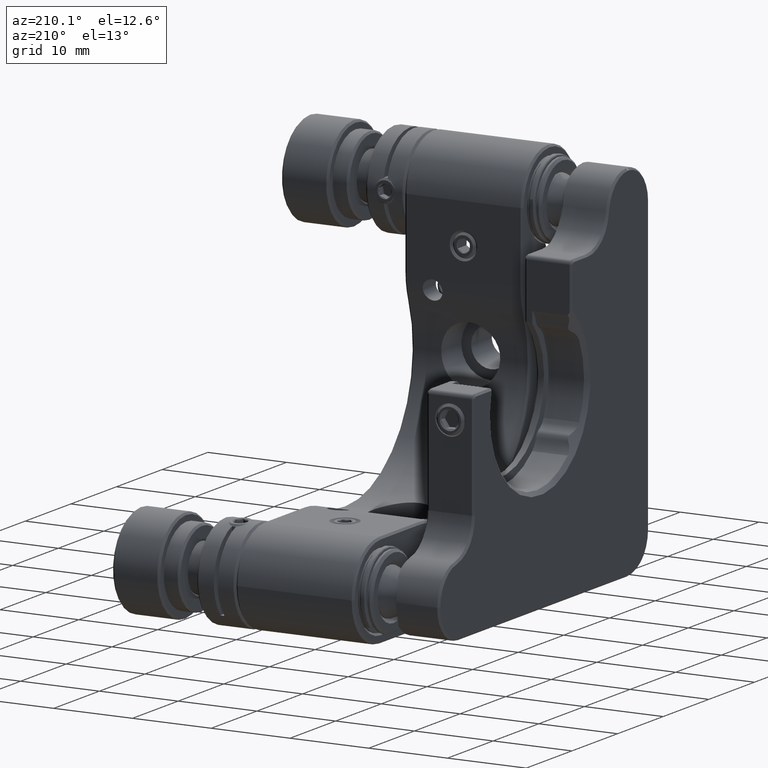
[diagram: clean part render]
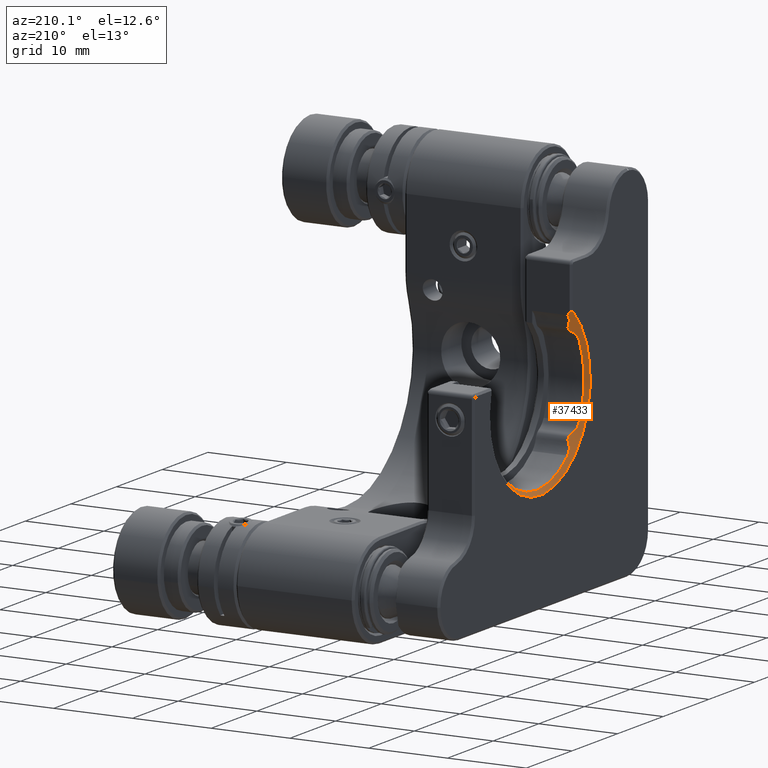
[diagram: same view with one face highlighted and labeled with its STEP entity id]
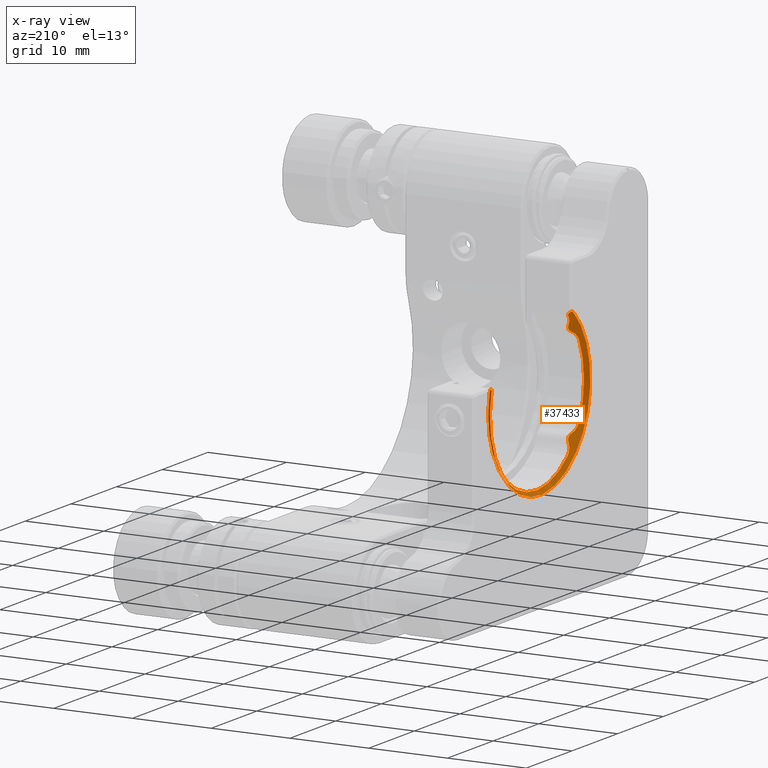
[diagram: x-ray of the same camera — body ghosted, the highlighted face saturated]
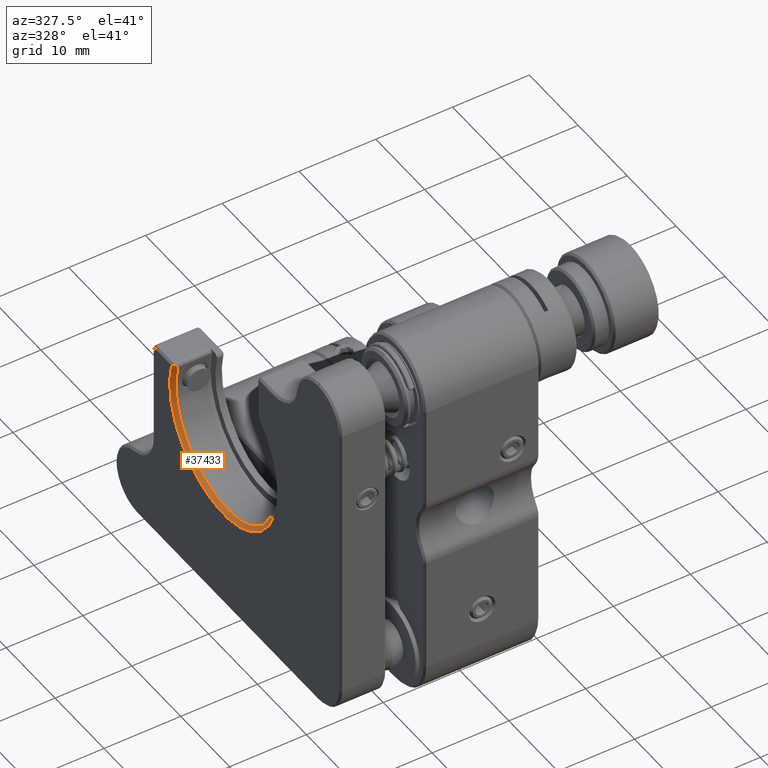
[diagram: same view with one face highlighted and labeled with its STEP entity id]
A machine part, auxiliary view. The second image highlights one B-rep face of the part: STEP entity #37433.
The next image is the same camera in x-ray: the body ghosted, the highlighted face saturated — about 0% of this face is hidden behind the body in this view.
A second angle (auxiliary view) of the same face is appended — the face is thin or edge-on in the first view.
In plain terms, the highlighted conical surface has half-angle 45 deg.
Its self-contained STEP definition (entity closure, byte-faithful):
#179 = VERTEX_POINT ( 'NONE', #29132 ) ;
#304 = CARTESIAN_POINT ( 'NONE',  ( -16.99147966747254301, -6.210937559677017106, -6.815139931399381013 ) ) ;
#325 = CARTESIAN_POINT ( 'NONE',  ( -16.83658406921946238, -7.870682452127013562, -4.575964559311714197 ) ) ;
#822 = ORIENTED_EDGE ( 'NONE', *, *, #972, .F. ) ;
#972 = EDGE_CURVE ( 'NONE', #31057, #5194, #25898, .T. ) ;
#1192 = ORIENTED_EDGE ( 'NONE', *, *, #18461, .F. ) ;
#1704 = CARTESIAN_POINT ( 'NONE',  ( -17.24999999999998579, 11.23595530632774597, 3.854746673675292445 ) ) ;
#2263 = FACE_OUTER_BOUND ( 'NONE', #29018, .T. ) ;
#2329 = CARTESIAN_POINT ( 'NONE',  ( -16.83678831053746450, -7.871242842792122829, 6.375425817256530792 ) ) ;
#2496 = CARTESIAN_POINT ( 'NONE',  ( -16.83678854770245792, -6.659019472326238365, -6.155226295503751999 ) ) ;
#2951 = ORIENTED_EDGE ( 'NONE', *, *, #13803, .F. ) ;
#3517 = CARTESIAN_POINT ( 'NONE',  ( -16.93356134288566039, -8.150221090973078120, -4.293190019436543103 ) ) ;
#3554 = CARTESIAN_POINT ( 'NONE',  ( -17.24999999999998579, 11.23595530632774597, 3.854746673675292445 ) ) ;
#3698 = CARTESIAN_POINT ( 'NONE',  ( -16.99999999999999645, -6.117035098803095927, -6.912170801555804545 ) ) ;
#3852 = VERTEX_POINT ( 'NONE', #25152 ) ;
#4025 = EDGE_CURVE ( 'NONE', #16488, #23687, #15636, .T. ) ;
#4882 = VERTEX_POINT ( 'NONE', #14130 ) ;
#5194 = VERTEX_POINT ( 'NONE', #11570 ) ;
#5365 = CARTESIAN_POINT ( 'NONE',  ( -16.54918994792240738, -7.292554440753860057, -4.921595922731328621 ) ) ;
#5816 = CARTESIAN_POINT ( 'NONE',  ( -17.33327628336183324, -6.083276283361835013, 9.182224345088210171 ) ) ;
#5938 = CARTESIAN_POINT ( 'NONE',  ( -16.99999999999999289, -8.462119624761845316, 5.655997317970800076 ) ) ;
#6116 = VERTEX_POINT ( 'NONE', #39816 ) ;
#6344 = CARTESIAN_POINT ( 'NONE',  ( -16.99999999999999645, 0.9000000000000050182, 0.8999999999999988010 ) ) ;
#6465 = ORIENTED_EDGE ( 'NONE', *, *, #12722, .F. ) ;
#6658 = CARTESIAN_POINT ( 'NONE',  ( -17.49999999999999645, -6.249999999999998224, 9.259276284463858531 ) ) ;
#7370 = AXIS2_PLACEMENT_3D ( 'NONE', #15282, #28298, #12075 ) ;
#7406 = CARTESIAN_POINT ( 'NONE',  ( -16.62834306949233110, -6.806050455551222456, 7.472679796691152454 ) ) ;
#7728 = B_SPLINE_CURVE_WITH_KNOTS ( 'NONE', 3,
 ( #36360, #20130, #39571, #13927, #17128, #30575 ),
 .UNSPECIFIED., .F., .F.,
 ( 4, 2, 4 ),
 ( 2.236837648501985449E-07, 0.0005572657870481725504, 0.001114307890331494872 ),
 .UNSPECIFIED. ) ;
#7765 = ORIENTED_EDGE ( 'NONE', *, *, #23318, .T. ) ;
#8126 = CARTESIAN_POINT ( 'NONE',  ( -16.54911900314859707, -6.843652641870269449, -5.506511216737964176 ) ) ;
#8473 = VERTEX_POINT ( 'NONE', #36748 ) ;
#8813 = EDGE_CURVE ( 'NONE', #30383, #179, #9388, .T. ) ;
#9388 = B_SPLINE_CURVE_WITH_KNOTS ( 'NONE', 3,
 ( #11764, #5365, #18390, #27996, #8126, #30557 ),
 .UNSPECIFIED., .F., .F.,
 ( 4, 2, 4 ),
 ( 2.465161533226829529E-07, 0.0005572886614682529688, 0.001114330806783183411 ),
 .UNSPECIFIED. ) ;
#10358 = EDGE_CURVE ( 'NONE', #30383, #6116, #29292, .T. ) ;
#10413 = CARTESIAN_POINT ( 'NONE',  ( -16.99130427794181841, -6.212370729592070262, 8.613580192865819996 ) ) ;
#10600 = CARTESIAN_POINT ( 'NONE',  ( -16.99999999999999645, 0.9000000000000050182, 0.8999999999999988010 ) ) ;
#11295 = CARTESIAN_POINT ( 'NONE',  ( -17.03195467414954578, 11.08671014991547210, 3.575462107185729543 ) ) ;
#11570 = CARTESIAN_POINT ( 'NONE',  ( -16.99999999999999645, -6.013857838257426813, -7.002440749057615932 ) ) ;
#11764 = CARTESIAN_POINT ( 'NONE',  ( -16.62834306949232754, -7.443193783969964450, -4.842338444959354504 ) ) ;
#12075 = DIRECTION ( 'NONE',  ( 0.000000000000000000, 0.000000000000000000, 1.000000000000000000 ) ) ;
#12307 = CARTESIAN_POINT ( 'NONE',  ( -16.74373593672460103, -6.751281440354105712, -5.914710656373612707 ) ) ;
#12367 = B_SPLINE_CURVE_WITH_KNOTS ( 'NONE', 3,
 ( #31386, #40552, #11295, #21127, #17918, #1704 ),
 .UNSPECIFIED., .F., .F.,
 ( 4, 2, 4 ),
 ( 2.022236264700987773E-07, 0.0002908395100742742524, 0.0005814767965220784792 ),
 .UNSPECIFIED. ) ;
#12722 = EDGE_CURVE ( 'NONE', #6116, #22243, #29779, .T. ) ;
#12765 = DIRECTION ( 'NONE',  ( -1.000000000000000000, -0.000000000000000000, -0.000000000000000000 ) ) ;
#12957 = ORIENTED_EDGE ( 'NONE', *, *, #30786, .T. ) ;
#13168 = B_SPLINE_CURVE_WITH_KNOTS ( 'NONE', 3,
 ( #6658, #19686, #5816, #18850 ),
 .UNSPECIFIED., .F., .F.,
 ( 4, 4 ),
 ( 0.000000000000000000, 0.0003720798207782434800 ),
 .UNSPECIFIED. ) ;
#13199 = DIRECTION ( 'NONE',  ( 0.000000000000000000, 0.000000000000000000, 1.000000000000000000 ) ) ;
#13624 = VERTEX_POINT ( 'NONE', #15137 ) ;
#13803 = EDGE_CURVE ( 'NONE', #22243, #3852, #15493, .T. ) ;
#13816 = CARTESIAN_POINT ( 'NONE',  ( -16.93356140560581125, -6.458605800543175235, 8.297746035170050050 ) ) ;
#13927 = CARTESIAN_POINT ( 'NONE',  ( -16.49982498353314142, -7.146151515079804284, 6.840591956869521262 ) ) ;
#14130 = CARTESIAN_POINT ( 'NONE',  ( -17.24999999999998579, 11.23595530632774597, 3.854746673675292445 ) ) ;
#14345 = CARTESIAN_POINT ( 'NONE',  ( -16.62834306949233110, -6.806050455551222456, 7.472679796691152454 ) ) ;
#14953 = B_SPLINE_CURVE_WITH_KNOTS ( 'NONE', 3,
 ( #15731, #3698, #304, #31738, #19722, #2496, #12307, #28326 ),
 .UNSPECIFIED., .F., .F.,
 ( 4, 2, 2, 4 ),
 ( 2.615348014429173779E-07, 0.0004050518813154923951, 0.0008098422278295418697, 0.001619422920857639626 ),
 .UNSPECIFIED. ) ;
#15137 = CARTESIAN_POINT ( 'NONE',  ( -17.49999999999999645, 11.52646386801763967, 3.742228995298529703 ) ) ;
#15282 = CARTESIAN_POINT ( 'NONE',  ( -17.49999999999999645, 0.9000000000000050182, 0.8999999999999988010 ) ) ;
#15345 = CARTESIAN_POINT ( 'NONE',  ( -16.62834306949233110, -7.443193783969962674, 6.642338444959358768 ) ) ;
#15493 = B_SPLINE_CURVE_WITH_KNOTS ( 'NONE', 3,
 ( #21540, #5938, #15555, #25359, #18973, #2329, #34563, #15345 ),
 .UNSPECIFIED., .F., .F.,
 ( 4, 2, 2, 4 ),
 ( 2.193457994506551938E-07, 0.0004050096587635939249, 0.0008097999717277372736, 0.001619380597656022670 ),
 .UNSPECIFIED. ) ;
#15555 = CARTESIAN_POINT ( 'NONE',  ( -16.99147960333845120, -8.392698585706057202, 5.771813703751851321 ) ) ;
#15636 = CIRCLE ( 'NONE', #41529, 10.50000000000000000 ) ;
#15731 = CARTESIAN_POINT ( 'NONE',  ( -16.99999999999999645, -6.013857838257426813, -7.002440749057615932 ) ) ;
#16335 = CARTESIAN_POINT ( 'NONE',  ( -16.62834306949232754, -7.443193783969964450, -4.842338444959354504 ) ) ;
#16488 = VERTEX_POINT ( 'NONE', #17880 ) ;
#16515 = CARTESIAN_POINT ( 'NONE',  ( -16.62834306949232754, -7.443193783969964450, -4.842338444959354504 ) ) ;
#16577 = CARTESIAN_POINT ( 'NONE',  ( -17.33726333175711076, 11.33402757799806437, 3.829164175839241402 ) ) ;
#16742 = CARTESIAN_POINT ( 'NONE',  ( -16.74379206007406751, -7.662909188381806125, -4.726737245368687113 ) ) ;
#17022 = CARTESIAN_POINT ( 'NONE',  ( -16.83658400654507403, -6.659395400463334447, 7.954544535281944384 ) ) ;
#17128 = CARTESIAN_POINT ( 'NONE',  ( -16.54911918323505304, -7.292419765761700923, 6.721666780715502831 ) ) ;
#17180 = ORIENTED_EDGE ( 'NONE', *, *, #8813, .T. ) ;
#17880 = CARTESIAN_POINT ( 'NONE',  ( -16.99999999999999645, -6.013857838257437471, 8.802440749057604208 ) ) ;
#17918 = CARTESIAN_POINT ( 'NONE',  ( -17.18636719070005014, 11.18440956640999495, 3.803548296061181944 ) ) ;
#18390 = CARTESIAN_POINT ( 'NONE',  ( -16.50017603907729935, -7.147674294539416273, -5.039120029214235075 ) ) ;
#18408 = ORIENTED_EDGE ( 'NONE', *, *, #20891, .T. ) ;
#18461 = EDGE_CURVE ( 'NONE', #23687, #8473, #32700, .T. ) ;
#18850 = CARTESIAN_POINT ( 'NONE',  ( -17.25000000000932943, -5.999999999999991118, 9.143330637563964913 ) ) ;
#18973 = CARTESIAN_POINT ( 'NONE',  ( -16.93352763721476251, -8.150138118040670676, 6.093259870117627486 ) ) ;
#19686 = CARTESIAN_POINT ( 'NONE',  ( -17.41661068574238058, -6.166610685742387687, 9.220869986003728869 ) ) ;
#19722 = CARTESIAN_POINT ( 'NONE',  ( -16.93352760463745810, -6.458651974511878002, -6.497647490297880246 ) ) ;
#19743 = CARTESIAN_POINT ( 'NONE',  ( -16.99130425795265253, -8.391563184136495934, -3.973601335093262410 ) ) ;
#20130 = CARTESIAN_POINT ( 'NONE',  ( -16.54918970052797533, -6.843619086712671162, 7.306659501011671054 ) ) ;
#20824 = AXIS2_PLACEMENT_3D ( 'NONE', #25574, #23014, #13199 ) ;
#20891 = EDGE_CURVE ( 'NONE', #13624, #25653, #41964, .T. ) ;
#21127 = CARTESIAN_POINT ( 'NONE',  ( -17.12589953665540676, 11.14022169512175253, 3.737726643792261161 ) ) ;
#21540 = CARTESIAN_POINT ( 'NONE',  ( -16.99999999999999645, -8.522609693906225914, 5.532971676613652967 ) ) ;
#21823 = CARTESIAN_POINT ( 'NONE',  ( -16.99999999999999645, 11.10247903758673793, 3.381818181818180946 ) ) ;
#22243 = VERTEX_POINT ( 'NONE', #28254 ) ;
#22546 = CARTESIAN_POINT ( 'NONE',  ( -17.49999999999999645, -6.249999999999998224, 9.259276284463858531 ) ) ;
#23014 = DIRECTION ( 'NONE',  ( -1.000000000000000000, 0.000000000000000000, 0.000000000000000000 ) ) ;
#23208 = DIRECTION ( 'NONE',  ( 0.000000000000000000, 0.000000000000000000, 1.000000000000000000 ) ) ;
#23220 = CARTESIAN_POINT ( 'NONE',  ( -16.99999999999999645, 0.9000000000000050182, 0.8999999999999988010 ) ) ;
#23318 = EDGE_CURVE ( 'NONE', #25653, #8473, #13168, .T. ) ;
#23620 = DIRECTION ( 'NONE',  ( -1.000000000000000000, -0.000000000000000000, -0.000000000000000000 ) ) ;
#23640 = CARTESIAN_POINT ( 'NONE',  ( -16.99999999999999645, -6.013857838257437471, 8.802440749057604208 ) ) ;
#23687 = VERTEX_POINT ( 'NONE', #24558 ) ;
#24558 = CARTESIAN_POINT ( 'NONE',  ( -16.99999999999999645, -5.999999999999991118, 8.814543574963753514 ) ) ;
#24616 = CARTESIAN_POINT ( 'NONE',  ( -17.08289389195219954, -5.999999999999991118, 8.924516545262557443 ) ) ;
#25152 = CARTESIAN_POINT ( 'NONE',  ( -16.62834306949233110, -7.443193783969962674, 6.642338444959358768 ) ) ;
#25359 = CARTESIAN_POINT ( 'NONE',  ( -16.95842590843890108, -8.237198910340394420, 5.989984288459170969 ) ) ;
#25574 = CARTESIAN_POINT ( 'NONE',  ( -17.49999999999999645, 0.9000000000000050182, 0.8999999999999988010 ) ) ;
#25653 = VERTEX_POINT ( 'NONE', #22546 ) ;
#25796 = CONICAL_SURFACE ( 'NONE', #7370, 11.00000000000000000, 0.7853981633974500554 ) ;
#25898 = CIRCLE ( 'NONE', #42248, 10.50000000000000000 ) ;
#26094 = ORIENTED_EDGE ( 'NONE', *, *, #29798, .F. ) ;
#26426 = CARTESIAN_POINT ( 'NONE',  ( -16.74379222308064641, -6.751254725112838528, 7.714828714235129503 ) ) ;
#26840 = CARTESIAN_POINT ( 'NONE',  ( -17.00000000000000000, -6.117146321138276832, 8.712073492959854448 ) ) ;
#27005 = ORIENTED_EDGE ( 'NONE', *, *, #10358, .F. ) ;
#27191 = B_SPLINE_CURVE_WITH_KNOTS ( 'NONE', 3,
 ( #7406, #26426, #17022, #13816, #33461, #10413, #26840, #23640 ),
 .UNSPECIFIED., .F., .F.,
 ( 4, 2, 2, 4 ),
 ( 2.234266724278794419E-07, 0.0008117656277110565184, 0.001217536728230366599, 0.001623307828749677006 ),
 .UNSPECIFIED. ) ;
#27251 = DIRECTION ( 'NONE',  ( 0.000000000000000000, 0.000000000000000000, 1.000000000000000000 ) ) ;
#27827 = CARTESIAN_POINT ( 'NONE',  ( -16.99999999999999645, -5.999999999999991118, 8.814543574963753514 ) ) ;
#27852 = B_SPLINE_CURVE_WITH_KNOTS ( 'NONE', 3,
 ( #3554, #16577, #29600, #39836 ),
 .UNSPECIFIED., .F., .F.,
 ( 4, 4 ),
 ( 0.000000000000000000, 0.0003994439289342502993 ),
 .UNSPECIFIED. ) ;
#27863 = VERTEX_POINT ( 'NONE', #14345 ) ;
#27996 = CARTESIAN_POINT ( 'NONE',  ( -16.49982494802970479, -6.920668288922026790, -5.334447366507738764 ) ) ;
#28254 = CARTESIAN_POINT ( 'NONE',  ( -16.99999999999999645, -8.522609693906225914, 5.532971676613652967 ) ) ;
#28298 = DIRECTION ( 'NONE',  ( -1.000000000000000000, -0.000000000000000000, -0.000000000000000000 ) ) ;
#28326 = CARTESIAN_POINT ( 'NONE',  ( -16.62834306949232754, -6.806050455551219791, -5.672679796691156184 ) ) ;
#28777 = DIRECTION ( 'NONE',  ( 0.000000000000000000, 0.000000000000000000, 1.000000000000000000 ) ) ;
#29018 = EDGE_LOOP ( 'NONE', ( #18408, #7765, #1192, #38700, #26094, #12957, #2951, #6465, #27005, #17180, #41405, #822, #37330, #36292 ) ) ;
#29132 = CARTESIAN_POINT ( 'NONE',  ( -16.62834306949232754, -6.806050455551219791, -5.672679796691156184 ) ) ;
#29292 = B_SPLINE_CURVE_WITH_KNOTS ( 'NONE', 3,
 ( #16335, #16742, #325, #3517, #35975, #19743, #39160, #29769 ),
 .UNSPECIFIED., .F., .F.,
 ( 4, 2, 2, 4 ),
 ( 2.462356485277176222E-07, 0.0008117884463560242183, 0.001217559551709770753, 0.001623330657063517179 ),
 .UNSPECIFIED. ) ;
#29600 = CARTESIAN_POINT ( 'NONE',  ( -17.42263197071367742, 11.43150392060239717, 3.797833286236683037 ) ) ;
#29769 = CARTESIAN_POINT ( 'NONE',  ( -16.99999999999999645, -8.522609693906229467, -3.732971676613646039 ) ) ;
#29779 = CIRCLE ( 'NONE', #38608, 10.50000000000000000 ) ;
#29798 = EDGE_CURVE ( 'NONE', #27863, #16488, #27191, .T. ) ;
#30383 = VERTEX_POINT ( 'NONE', #16515 ) ;
#30389 = EDGE_CURVE ( 'NONE', #5194, #179, #14953, .T. ) ;
#30453 = DIRECTION ( 'NONE',  ( -1.000000000000000000, -0.000000000000000000, -0.000000000000000000 ) ) ;
#30557 = CARTESIAN_POINT ( 'NONE',  ( -16.62834306949232754, -6.806050455551219791, -5.672679796691156184 ) ) ;
#30575 = CARTESIAN_POINT ( 'NONE',  ( -16.62834306949233110, -7.443193783969962674, 6.642338444959358768 ) ) ;
#30786 = EDGE_CURVE ( 'NONE', #27863, #3852, #7728, .T. ) ;
#31057 = VERTEX_POINT ( 'NONE', #21823 ) ;
#31386 = CARTESIAN_POINT ( 'NONE',  ( -16.99999999999999645, 11.10247903758673793, 3.381818181818180946 ) ) ;
#31738 = CARTESIAN_POINT ( 'NONE',  ( -16.95842600301912384, -6.381428049892067911, -6.608471984404037158 ) ) ;
#32143 = EDGE_CURVE ( 'NONE', #31057, #4882, #12367, .T. ) ;
#32700 = B_SPLINE_CURVE_WITH_KNOTS ( 'NONE', 3,
 ( #27827, #24616, #35288, #41698 ),
 .UNSPECIFIED., .F., .F.,
 ( 4, 4 ),
 ( 0.006429629150329524076, 0.006840119071442263970 ),
 .UNSPECIFIED. ) ;
#33461 = CARTESIAN_POINT ( 'NONE',  ( -16.95807562687948788, -6.382698323178054522, 8.406751779943174796 ) ) ;
#34563 = CARTESIAN_POINT ( 'NONE',  ( -16.74373588623443965, -7.662802281791892156, 6.526793493268428392 ) ) ;
#35288 = CARTESIAN_POINT ( 'NONE',  ( -17.16624034594052262, -5.999999999999991118, 9.034100968049392222 ) ) ;
#35975 = CARTESIAN_POINT ( 'NONE',  ( -16.95807557189830206, -8.235866228233167163, -4.191656338820672900 ) ) ;
#36292 = ORIENTED_EDGE ( 'NONE', *, *, #36993, .T. ) ;
#36360 = CARTESIAN_POINT ( 'NONE',  ( -16.62834306949233110, -6.806050455551222456, 7.472679796691152454 ) ) ;
#36748 = CARTESIAN_POINT ( 'NONE',  ( -17.25000000000932943, -5.999999999999991118, 9.143330637563964913 ) ) ;
#36993 = EDGE_CURVE ( 'NONE', #4882, #13624, #27852, .T. ) ;
#37330 = ORIENTED_EDGE ( 'NONE', *, *, #32143, .T. ) ;
#37433 = ADVANCED_FACE ( 'NONE', ( #2263 ), #25796, .F. ) ;
#38608 = AXIS2_PLACEMENT_3D ( 'NONE', #10600, #23620, #23208 ) ;
#38700 = ORIENTED_EDGE ( 'NONE', *, *, #4025, .F. ) ;
#39160 = CARTESIAN_POINT ( 'NONE',  ( -17.00000000000000355, -8.462054610896688089, -3.856129544178700908 ) ) ;
#39571 = CARTESIAN_POINT ( 'NONE',  ( -16.50017600317693578, -6.919641161440388544, 7.136298541697093434 ) ) ;
#39816 = CARTESIAN_POINT ( 'NONE',  ( -16.99999999999999645, -8.522609693906229467, -3.732971676613646039 ) ) ;
#39836 = CARTESIAN_POINT ( 'NONE',  ( -17.49999999999999645, 11.52646386801763967, 3.742228995298529703 ) ) ;
#40552 = CARTESIAN_POINT ( 'NONE',  ( -16.99999999999999645, 11.07917186404700338, 3.477631384899128708 ) ) ;
#41405 = ORIENTED_EDGE ( 'NONE', *, *, #30389, .F. ) ;
#41529 = AXIS2_PLACEMENT_3D ( 'NONE', #6344, #12765, #28777 ) ;
#41698 = CARTESIAN_POINT ( 'NONE',  ( -17.25000000000932943, -5.999999999999991118, 9.143330637563964913 ) ) ;
#41964 = CIRCLE ( 'NONE', #20824, 11.00000000000000000 ) ;
#42248 = AXIS2_PLACEMENT_3D ( 'NONE', #23220, #30453, #27251 ) ;